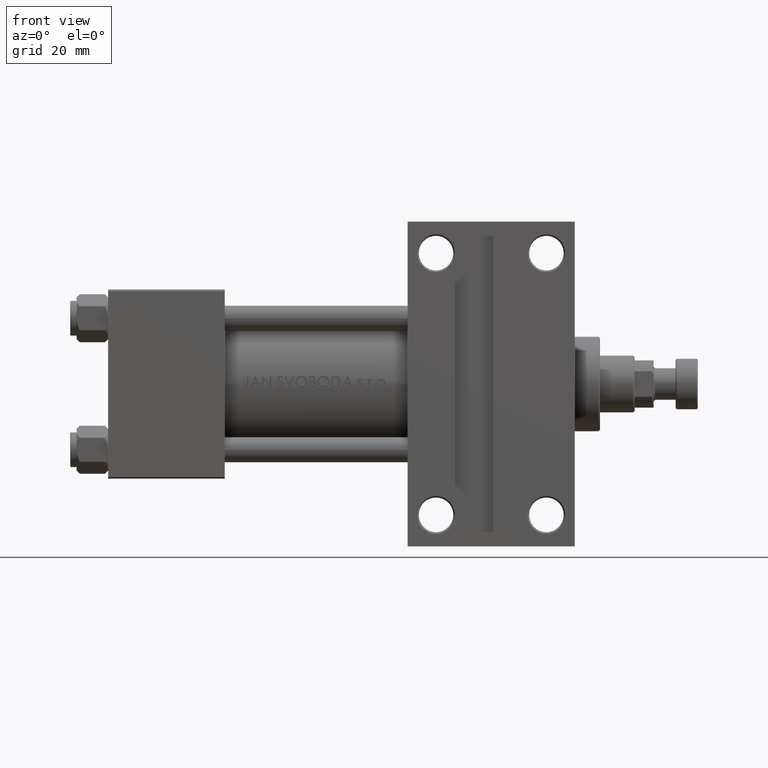
[diagram: clean part render]
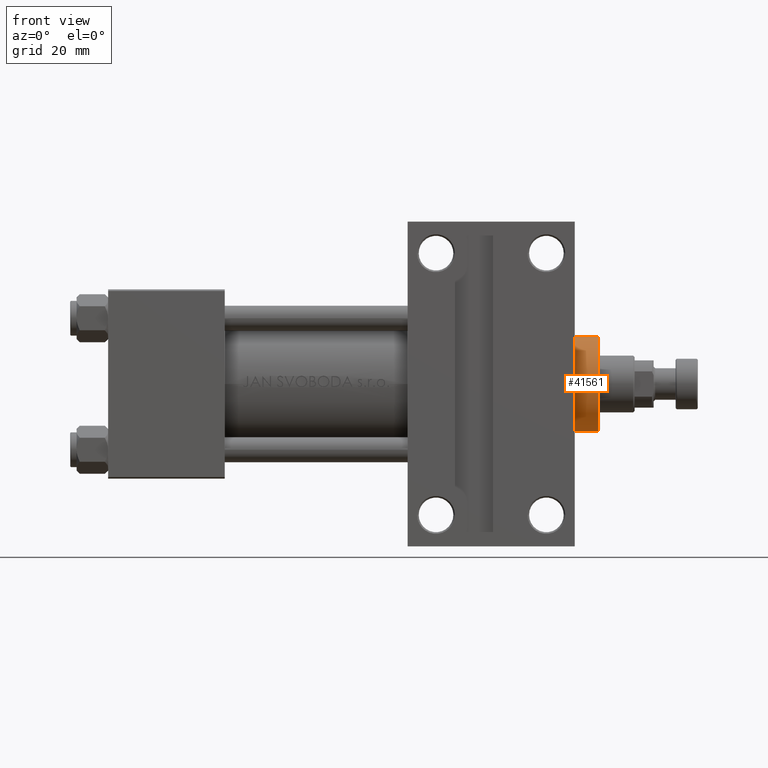
[diagram: same view with one face highlighted and labeled with its STEP entity id]
A machine part, front view. The second image highlights one B-rep face of the part: STEP entity #41561.
In plain terms, the highlighted cylindrical surface (partial cylindrical patch) has radius 15 mm, axis along (-1, 0, 0).
Its self-contained STEP definition (entity closure, byte-faithful):
#8 = VERTEX_POINT ( 'NONE', #38294 ) ;
#3016 = ORIENTED_EDGE ( 'NONE', *, *, #14753, .T. ) ;
#4784 = DIRECTION ( 'NONE',  ( -0.000000000000000000, -0.000000000000000000, -1.000000000000000000 ) ) ;
#5767 = DIRECTION ( 'NONE',  ( -1.000000000000000000, 0.000000000000000000, 0.000000000000000000 ) ) ;
#7579 = LINE ( 'NONE', #11549, #45986 ) ;
#8923 = AXIS2_PLACEMENT_3D ( 'NONE', #20173, #4784, #5767 ) ;
#9050 = CARTESIAN_POINT ( 'NONE',  ( 15.00000000000000000, 1.836970198721029589E-15, 28.69999999999999929 ) ) ;
#10897 = CARTESIAN_POINT ( 'NONE',  ( -15.00000000000000000, 0.000000000000000000, 36.69999999999999574 ) ) ;
#10928 = DIRECTION ( 'NONE',  ( 0.000000000000000000, 0.000000000000000000, 1.000000000000000000 ) ) ;
#11549 = CARTESIAN_POINT ( 'NONE',  ( 15.00000000000000000, 1.836970198721029589E-15, 36.69999999999999574 ) ) ;
#14140 = LINE ( 'NONE', #10897, #27917 ) ;
#14753 = EDGE_CURVE ( 'NONE', #26008, #29157, #40394, .T. ) ;
#17487 = CARTESIAN_POINT ( 'NONE',  ( 0.000000000000000000, 0.000000000000000000, 36.20000000000000284 ) ) ;
#18528 = DIRECTION ( 'NONE',  ( -0.000000000000000000, -0.000000000000000000, -1.000000000000000000 ) ) ;
#19743 = EDGE_CURVE ( 'NONE', #8, #26008, #7579, .T. ) ;
#19993 = ORIENTED_EDGE ( 'NONE', *, *, #45145, .T. ) ;
#20173 = CARTESIAN_POINT ( 'NONE',  ( 0.000000000000000000, 0.000000000000000000, 36.69999999999999574 ) ) ;
#23669 = CARTESIAN_POINT ( 'NONE',  ( -15.00000000000000000, 0.000000000000000000, 28.69999999999999929 ) ) ;
#24412 = CYLINDRICAL_SURFACE ( 'NONE', #8923, 15.00000000000000000 ) ;
#25448 = DIRECTION ( 'NONE',  ( 1.000000000000000000, 0.000000000000000000, 0.000000000000000000 ) ) ;
#26008 = VERTEX_POINT ( 'NONE', #9050 ) ;
#26067 = DIRECTION ( 'NONE',  ( -0.000000000000000000, -0.000000000000000000, -1.000000000000000000 ) ) ;
#27917 = VECTOR ( 'NONE', #26067, 1000.000000000000000 ) ;
#28064 = CIRCLE ( 'NONE', #43977, 15.00000000000000000 ) ;
#29157 = VERTEX_POINT ( 'NONE', #23669 ) ;
#30013 = CARTESIAN_POINT ( 'NONE',  ( -15.00000000000000000, 0.000000000000000000, 36.20000000000000284 ) ) ;
#32069 = ORIENTED_EDGE ( 'NONE', *, *, #40760, .F. ) ;
#32595 = DIRECTION ( 'NONE',  ( 1.000000000000000000, 0.000000000000000000, 0.000000000000000000 ) ) ;
#32643 = EDGE_LOOP ( 'NONE', ( #19993, #36780, #3016, #32069 ) ) ;
#32678 = DIRECTION ( 'NONE',  ( 0.000000000000000000, 0.000000000000000000, -1.000000000000000000 ) ) ;
#35629 = AXIS2_PLACEMENT_3D ( 'NONE', #40529, #10928, #32595 ) ;
#36780 = ORIENTED_EDGE ( 'NONE', *, *, #19743, .T. ) ;
#38294 = CARTESIAN_POINT ( 'NONE',  ( 15.00000000000000000, 1.836970198721029589E-15, 36.20000000000000284 ) ) ;
#38772 = VERTEX_POINT ( 'NONE', #30013 ) ;
#40394 = CIRCLE ( 'NONE', #35629, 15.00000000000000000 ) ;
#40529 = CARTESIAN_POINT ( 'NONE',  ( 0.000000000000000000, 0.000000000000000000, 28.69999999999999929 ) ) ;
#40760 = EDGE_CURVE ( 'NONE', #38772, #29157, #14140, .T. ) ;
#41561 = ADVANCED_FACE ( 'NONE', ( #42804 ), #24412, .T. ) ;
#42804 = FACE_OUTER_BOUND ( 'NONE', #32643, .T. ) ;
#43977 = AXIS2_PLACEMENT_3D ( 'NONE', #17487, #32678, #25448 ) ;
#45145 = EDGE_CURVE ( 'NONE', #38772, #8, #28064, .T. ) ;
#45986 = VECTOR ( 'NONE', #18528, 1000.000000000000000 ) ;